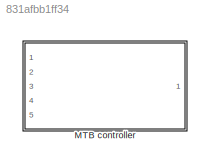
MODEL slx_831afbb1ff34
KIND library
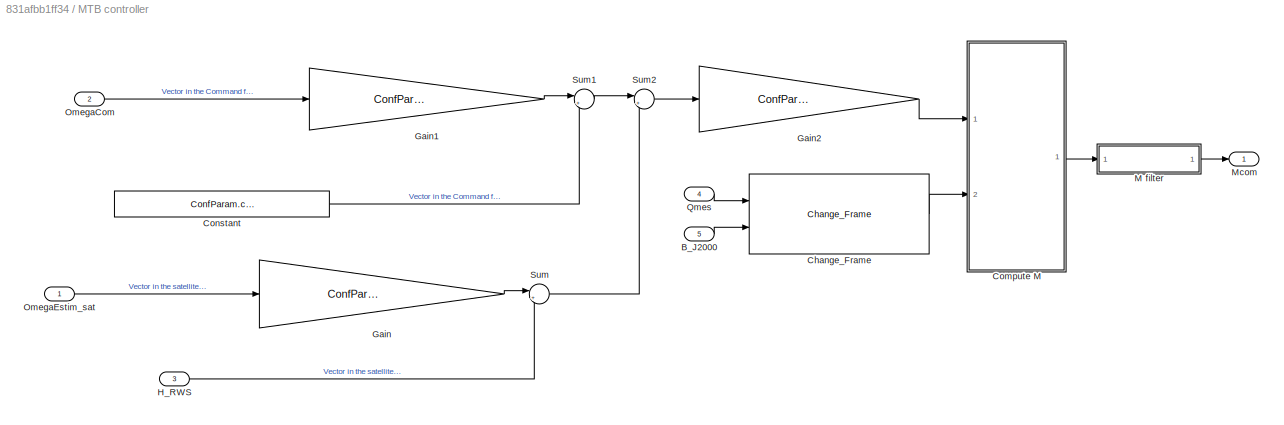
BLOCK [SubSystem] MTB controller
  Ports = [5, 1]
  RequestExecContextInheritance = off
BLOCK [Inport] MTB controller/B_J2000
  IconDisplay = Port number
  Port = 5
BLOCK [Reference] MTB controller/Change_Frame  REF=ChangeFrame/Change_Frame
  Ports = [2, 1]
  SourceBlock = ChangeFrame/Change_Frame
  SourceType = SubSystem
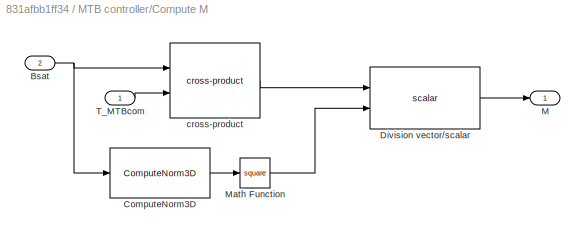
BLOCK [SubSystem] MTB controller/Compute M
  Ports = [2, 1]
  RequestExecContextInheritance = off
BLOCK [Inport] MTB controller/Compute M/Bsat
  IconDisplay = Port number
  Port = 2
BLOCK [Reference] MTB controller/Compute M/ComputeNorm3D  REF=ComputeNorm3D/ComputeNorm3D
  Ports = [1, 1]
  SourceBlock = ComputeNorm3D/ComputeNorm3D
  SourceType = SubSystem
BLOCK [Reference] MTB controller/Compute M/Division vector//scalar  REF=DivisionVectorScalar/Division vector//scalar
  Ports = [2, 1]
  SourceBlock = DivisionVectorScalar/Division vector//scalar
  SourceType = SubSystem
BLOCK [Outport] MTB controller/Compute M/M
  IconDisplay = Port number
BLOCK [Math] MTB controller/Compute M/Math Function
  Operator = square
  Ports = [1, 1]
BLOCK [Inport] MTB controller/Compute M/T_MTBcom
  IconDisplay = Port number
BLOCK [Reference] MTB controller/Compute M/cross-product  REF=CrossProd/cross-product
  Ports = [2, 1]
  SourceBlock = CrossProd/cross-product
  SourceType = SubSystem
BLOCK [Constant] MTB controller/Constant
  Value = ConfParam.confMTBcontroller.H_RWSref
BLOCK [Gain] MTB controller/Gain
  Gain = ConfParam.confMTBcontroller.I_sat
  Multiplication = Matrix(K*u)
  OutDataTypeStr = Inherit: Inherit via internal rule
  ParamDataTypeStr = Inherit: Inherit via internal rule
  SaturateOnIntegerOverflow = off
BLOCK [Gain] MTB controller/Gain1
  Gain = ConfParam.confMTBcontroller.I_sat
  Multiplication = Matrix(K*u)
  OutDataTypeStr = Inherit: Inherit via internal rule
  ParamDataTypeStr = Inherit: Inherit via internal rule
  SaturateOnIntegerOverflow = off
BLOCK [Gain] MTB controller/Gain2
  Gain = ConfParam.confMTBcontroller.km
  OutDataTypeStr = Inherit: Inherit via internal rule
  ParamDataTypeStr = Inherit: Inherit via internal rule
  SaturateOnIntegerOverflow = off
BLOCK [Inport] MTB controller/H_RWS
  IconDisplay = Port number
  Port = 3
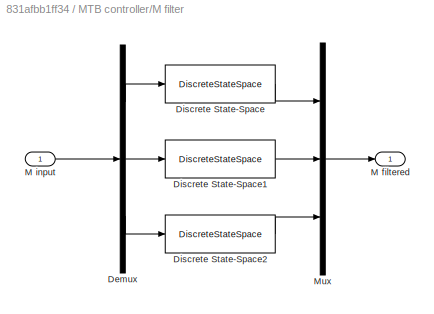
BLOCK [SubSystem] MTB controller/M filter
  Ports = [1, 1]
  RequestExecContextInheritance = off
BLOCK [Demux] MTB controller/M filter/Demux
  DisplayOption = bar
  Outputs = 3
  Ports = [1, 3]
BLOCK [DiscreteStateSpace] MTB controller/M filter/Discrete State-Space
  A = ConfParam.confMTBcontroller.A
  B = ConfParam.confMTBcontroller.B
  C = ConfParam.confMTBcontroller.C
  D = ConfParam.confMTBcontroller.D
  SampleTime = 1/ConfParam.confES.frequency
  X0 = [0; 0]
BLOCK [DiscreteStateSpace] MTB controller/M filter/Discrete State-Space1
  A = ConfParam.confMTBcontroller.A
  B = ConfParam.confMTBcontroller.B
  C = ConfParam.confMTBcontroller.C
  D = ConfParam.confMTBcontroller.D
  SampleTime = 1/ConfParam.confES.frequency
  X0 = [0; 0]
BLOCK [DiscreteStateSpace] MTB controller/M filter/Discrete State-Space2
  A = ConfParam.confMTBcontroller.A
  B = ConfParam.confMTBcontroller.B
  C = ConfParam.confMTBcontroller.C
  D = ConfParam.confMTBcontroller.D
  SampleTime = 1/ConfParam.confES.frequency
  X0 = [0; 0]
BLOCK [Outport] MTB controller/M filter/M filtered
  IconDisplay = Port number
BLOCK [Inport] MTB controller/M filter/M input
  IconDisplay = Port number
BLOCK [Mux] MTB controller/M filter/Mux
  DisplayOption = bar
  Inputs = 3
  Ports = [3, 1]
BLOCK [Outport] MTB controller/Mcom
  IconDisplay = Port number
BLOCK [Inport] MTB controller/OmegaCom
  IconDisplay = Port number
  Port = 2
BLOCK [Inport] MTB controller/OmegaEstim_sat
  IconDisplay = Port number
BLOCK [Inport] MTB controller/Qmes
  IconDisplay = Port number
  Port = 4
BLOCK [Sum] MTB controller/Sum
  IconShape = round
  InputSameDT = off
  Inputs = |++
  OutDataTypeStr = Inherit: Inherit via internal rule
  Ports = [2, 1]
  SaturateOnIntegerOverflow = off
BLOCK [Sum] MTB controller/Sum1
  IconShape = round
  InputSameDT = off
  Inputs = |++
  OutDataTypeStr = Inherit: Inherit via internal rule
  Ports = [2, 1]
  SaturateOnIntegerOverflow = off
BLOCK [Sum] MTB controller/Sum2
  IconShape = round
  InputSameDT = off
  Inputs = |+-
  OutDataTypeStr = Inherit: Inherit via internal rule
  Ports = [2, 1]
  SaturateOnIntegerOverflow = off
LINE MTB controller/B_J2000:1 -> MTB controller/Change_Frame:2
LINE MTB controller/Change_Frame:1 -> MTB controller/Compute M:2
NET MTB controller/Compute M/Bsat:1 -> MTB controller/Compute M/ComputeNorm3D:1, MTB controller/Compute M/cross-product:1
LINE MTB controller/Compute M/ComputeNorm3D:1 -> MTB controller/Compute M/Math Function:1
LINE MTB controller/Compute M/Division vector//scalar:1 -> MTB controller/Compute M/M:1
LINE MTB controller/Compute M/Math Function:1 -> MTB controller/Compute M/Division vector//scalar:2
LINE MTB controller/Compute M/T_MTBcom:1 -> MTB controller/Compute M/cross-product:2
LINE MTB controller/Compute M/cross-product:1 -> MTB controller/Compute M/Division vector//scalar:1
LINE MTB controller/Compute M:1 -> MTB controller/M filter:1
LINE MTB controller/Constant:1 -> MTB controller/Sum1:2
LINE MTB controller/Gain1:1 -> MTB controller/Sum1:1
LINE MTB controller/Gain2:1 -> MTB controller/Compute M:1
LINE MTB controller/Gain:1 -> MTB controller/Sum:1
LINE MTB controller/H_RWS:1 -> MTB controller/Sum:2
LINE MTB controller/M filter/Demux:1 -> MTB controller/M filter/Discrete State-Space:1
LINE MTB controller/M filter/Demux:2 -> MTB controller/M filter/Discrete State-Space1:1
LINE MTB controller/M filter/Demux:3 -> MTB controller/M filter/Discrete State-Space2:1
LINE MTB controller/M filter/Discrete State-Space1:1 -> MTB controller/M filter/Mux:2
LINE MTB controller/M filter/Discrete State-Space2:1 -> MTB controller/M filter/Mux:3
LINE MTB controller/M filter/Discrete State-Space:1 -> MTB controller/M filter/Mux:1
LINE MTB controller/M filter/M input:1 -> MTB controller/M filter/Demux:1
LINE MTB controller/M filter/Mux:1 -> MTB controller/M filter/M filtered:1
LINE MTB controller/M filter:1 -> MTB controller/Mcom:1
LINE MTB controller/OmegaCom:1 -> MTB controller/Gain1:1
LINE MTB controller/OmegaEstim_sat:1 -> MTB controller/Gain:1
LINE MTB controller/Qmes:1 -> MTB controller/Change_Frame:1
LINE MTB controller/Sum1:1 -> MTB controller/Sum2:1
LINE MTB controller/Sum2:1 -> MTB controller/Gain2:1
LINE MTB controller/Sum:1 -> MTB controller/Sum2:2
note: NET lines group one-source signal fan-out (src -> all destinations, sorted); 1:1 wires keep LINE
